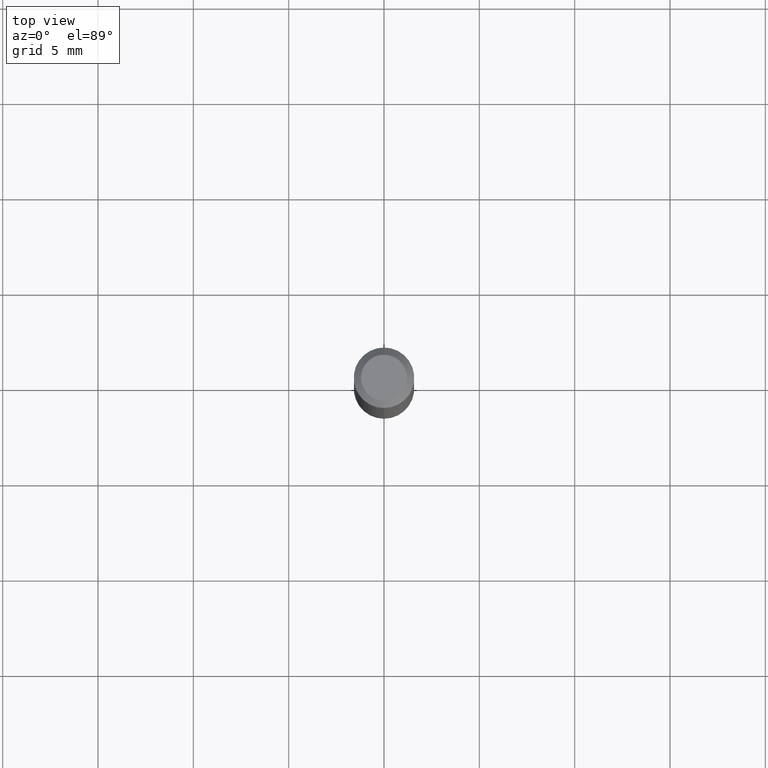
[diagram: clean part render]
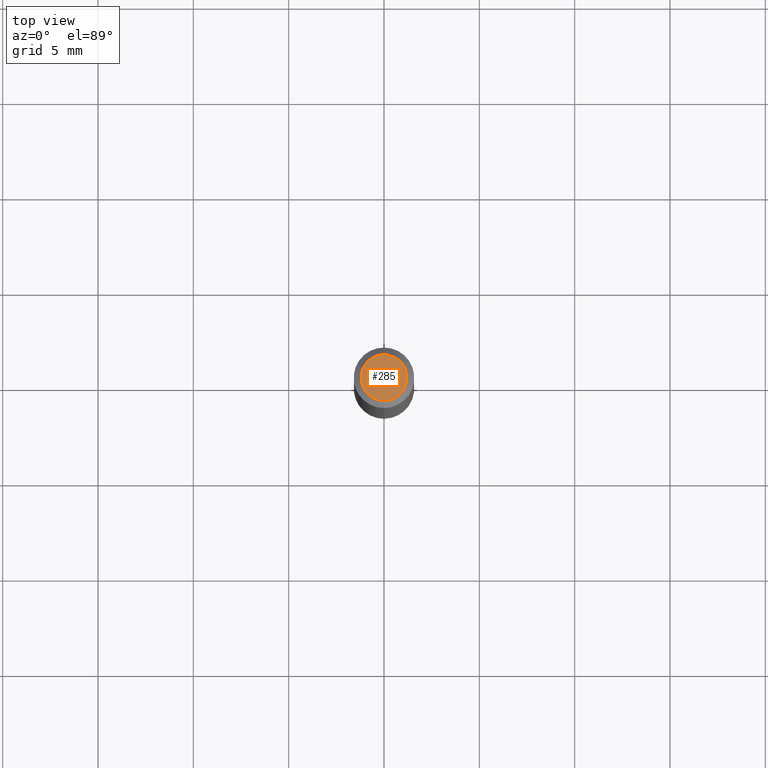
[diagram: same view with one face highlighted and labeled with its STEP entity id]
A machine part, top view. The second image highlights one B-rep face of the part: STEP entity #285.
In plain terms, the highlighted planar face has unit normal (0, -0, -1).
Its self-contained STEP definition (entity closure, byte-faithful):
#10 = PLANE ( 'NONE',  #308 ) ;
#20 = DIRECTION ( 'NONE',  ( 6.982962677686265922E-15, 1.000000000000000000, -3.491466418908496323E-15 ) ) ;
#30 = CARTESIAN_POINT ( 'NONE',  ( 2.166946058973634452E-46, -3.093798270708835562E-32, -8.861028288726947294E-18 ) ) ;
#54 = EDGE_CURVE ( 'NONE', #409, #167, #291, .T. ) ;
#56 = FACE_OUTER_BOUND ( 'NONE', #462, .T. ) ;
#60 = DIRECTION ( 'NONE',  ( 2.445479224719817293E-29, -3.491466418908496323E-15, -1.000000000000000000 ) ) ;
#92 = CARTESIAN_POINT ( 'NONE',  ( -3.773273898774340269E-16, -0.04749999999999999362, 1.569836266094266006E-16 ) ) ;
#93 = CARTESIAN_POINT ( 'NONE',  ( 3.316907271900976096E-16, 0.04749999999999999362, -1.702751690425170292E-16 ) ) ;
#97 = ORIENTED_EDGE ( 'NONE', *, *, #160, .T. ) ;
#110 = AXIS2_PLACEMENT_3D ( 'NONE', #30, #265, #298 ) ;
#112 = CARTESIAN_POINT ( 'NONE',  ( 3.840629472727447874E-16, 0.04749999999999999362, -1.747056831868805136E-16 ) ) ;
#153 = DIRECTION ( 'NONE',  ( -2.445479224719817573E-29, 3.491466418908496323E-15, 1.000000000000000000 ) ) ;
#160 = EDGE_CURVE ( 'NONE', #167, #409, #206, .T. ) ;
#167 = VERTEX_POINT ( 'NONE', #112 ) ;
#206 = CIRCLE ( 'NONE', #345, 0.04749999999999999362 ) ;
#230 = CARTESIAN_POINT ( 'NONE',  ( 2.166946058973634452E-46, -3.093798270708835562E-32, -8.861028288726947294E-18 ) ) ;
#265 = DIRECTION ( 'NONE',  ( -2.445479224719817573E-29, 3.491466418908496323E-15, 1.000000000000000000 ) ) ;
#285 = ADVANCED_FACE ( 'NONE', ( #56 ), #10, .F. ) ;
#291 = CIRCLE ( 'NONE', #110, 0.04749999999999999362 ) ;
#298 = DIRECTION ( 'NONE',  ( -6.982962677686266711E-15, -1.000000000000000000, 3.491466418908496323E-15 ) ) ;
#308 = AXIS2_PLACEMENT_3D ( 'NONE', #93, #60, #20 ) ;
#345 = AXIS2_PLACEMENT_3D ( 'NONE', #230, #153, #380 ) ;
#380 = DIRECTION ( 'NONE',  ( -6.982962677686266711E-15, -1.000000000000000000, 3.491466418908496323E-15 ) ) ;
#409 = VERTEX_POINT ( 'NONE', #92 ) ;
#436 = ORIENTED_EDGE ( 'NONE', *, *, #54, .T. ) ;
#462 = EDGE_LOOP ( 'NONE', ( #97, #436 ) ) ;